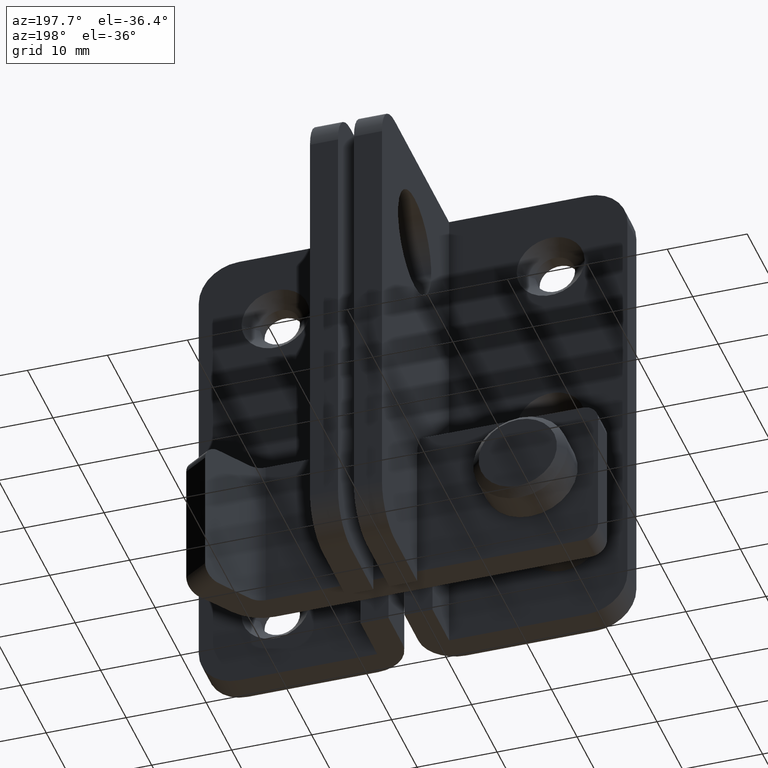
[diagram: clean part render]
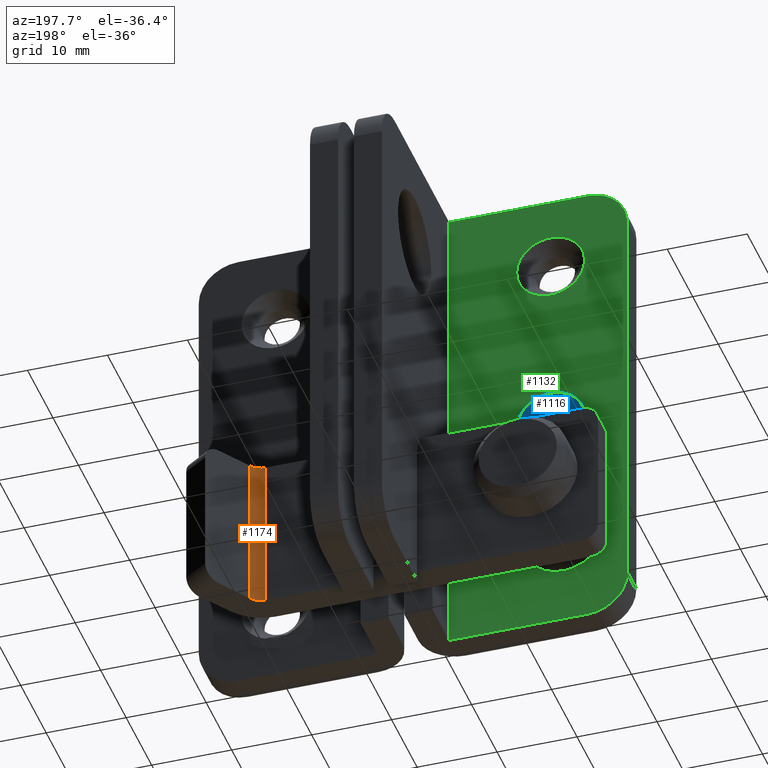
[diagram: same view with three faces highlighted in distinct colors, each labeled with its STEP entity id]
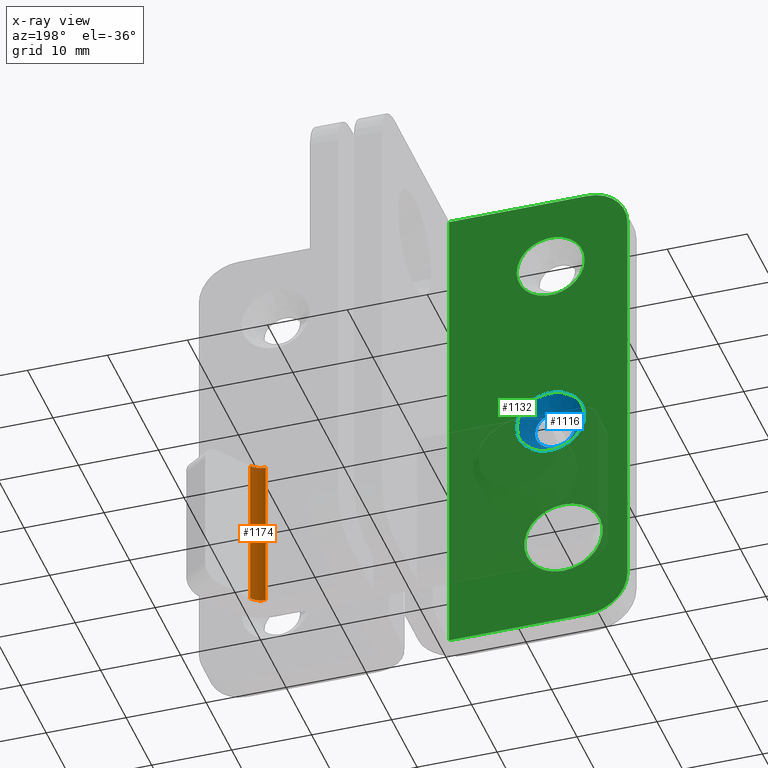
[diagram: x-ray of the same camera — body ghosted, the three highlighted faces saturated]
A machine part, auxiliary view with three faces highlighted in distinct colors.
The next image is the same camera in x-ray (body ghosted, the three faces saturated) — at least one of them is partly hidden behind the body in this view.
Their STEP definitions:

[orange] entity #1174 — the highlighted cylindrical surface (edge-blend (fillet) strip) has radius 2 mm, axis along (-0, 0, -1).
#175=FACE_OUTER_BOUND('',#274,.T.);
#274=EDGE_LOOP('',(#1063,#1064,#1065,#1066));
#360=LINE('',#1988,#450);
#365=LINE('',#2003,#455);
#450=VECTOR('',#1642,19.6);
#455=VECTOR('',#1659,19.6);
#509=CIRCLE('',#1296,2.);
#515=CIRCLE('',#1309,2.);
#615=VERTEX_POINT('',#1970);
#616=VERTEX_POINT('',#1972);
#621=VERTEX_POINT('',#1986);
#625=VERTEX_POINT('',#2002);
#759=EDGE_CURVE('',#615,#616,#509,.T.);
#767=EDGE_CURVE('',#621,#615,#360,.T.);
#774=EDGE_CURVE('',#625,#616,#365,.T.);
#776=EDGE_CURVE('',#625,#621,#515,.T.);
#1063=ORIENTED_EDGE('',*,*,#776,.F.);
#1064=ORIENTED_EDGE('',*,*,#774,.T.);
#1065=ORIENTED_EDGE('',*,*,#759,.F.);
#1066=ORIENTED_EDGE('',*,*,#767,.F.);
#1109=CYLINDRICAL_SURFACE('',#1308,2.);
#1174=ADVANCED_FACE('',(#175),#1109,.F.);
#1296=AXIS2_PLACEMENT_3D('',#1973,#1626,#1627);
#1308=AXIS2_PLACEMENT_3D('',#2005,#1661,#1662);
#1309=AXIS2_PLACEMENT_3D('',#2006,#1663,#1664);
#1626=DIRECTION('center_axis',(0.,0.,1.));
#1627=DIRECTION('ref_axis',(4.44089209850062E-15,1.,0.));
#1642=DIRECTION('',(0.,0.,-1.));
#1659=DIRECTION('',(0.,0.,-1.));
#1661=DIRECTION('center_axis',(0.,0.,-1.));
#1662=DIRECTION('ref_axis',(4.44089209850062E-15,1.,0.));
#1663=DIRECTION('center_axis',(0.,0.,-1.));
#1664=DIRECTION('ref_axis',(4.44089209850062E-15,1.,0.));
#1970=CARTESIAN_POINT('',(41.55,3.5,-19.6));
#1972=CARTESIAN_POINT('',(43.2256131233924,4.40806563351308,-19.6));
#1973=CARTESIAN_POINT('Origin',(41.55,5.50000000000001,-19.6));
#1986=CARTESIAN_POINT('',(41.55,3.5,0.));
#1988=CARTESIAN_POINT('',(41.55,3.5,0.));
#2002=CARTESIAN_POINT('',(43.2256131233924,4.40806563351308,0.));
#2003=CARTESIAN_POINT('',(43.2256131233924,4.40806563351308,0.));
#2005=CARTESIAN_POINT('Origin',(41.55,5.50000000000001,0.));
#2006=CARTESIAN_POINT('Origin',(41.55,5.50000000000001,0.));

[blue] entity #1116 — the highlighted conical surface has half-angle 45 deg.
#39=CONICAL_SURFACE('',#1193,3.375,45.);
#47=FACE_BOUND('',#187,.T.);
#117=FACE_OUTER_BOUND('',#186,.T.);
#186=EDGE_LOOP('',(#807));
#187=EDGE_LOOP('',(#808));
#464=CIRCLE('',#1194,4.25);
#465=CIRCLE('',#1195,2.5);
#533=VERTEX_POINT('',#1724);
#534=VERTEX_POINT('',#1726);
#647=EDGE_CURVE('',#533,#533,#464,.T.);
#648=EDGE_CURVE('',#534,#534,#465,.T.);
#807=ORIENTED_EDGE('',*,*,#647,.F.);
#808=ORIENTED_EDGE('',*,*,#648,.F.);
#1116=ADVANCED_FACE('',(#117,#47),#39,.F.);
#1193=AXIS2_PLACEMENT_3D('',#1723,#1357,#1358);
#1194=AXIS2_PLACEMENT_3D('',#1725,#1359,#1360);
#1195=AXIS2_PLACEMENT_3D('',#1727,#1361,#1362);
#1357=DIRECTION('center_axis',(-5.97429430291564E-16,1.,0.));
#1358=DIRECTION('ref_axis',(1.,5.97429430291564E-16,0.));
#1359=DIRECTION('center_axis',(5.97429430291564E-16,-1.,0.));
#1360=DIRECTION('ref_axis',(1.,5.97429430291564E-16,0.));
#1361=DIRECTION('center_axis',(-5.97429430291564E-16,1.,0.));
#1362=DIRECTION('ref_axis',(1.,5.97429430291564E-16,0.));
#1723=CARTESIAN_POINT('Origin',(9.6,2.625,-32.4));
#1724=CARTESIAN_POINT('',(13.85,3.5,-32.4));
#1725=CARTESIAN_POINT('Origin',(9.6,3.5,-32.4));
#1726=CARTESIAN_POINT('',(12.1,1.75,-32.4));
#1727=CARTESIAN_POINT('Origin',(9.6,1.74999999999999,-32.4));

[green] entity #1132 — the highlighted planar face has unit normal (-0, 1, 0).
#60=FACE_BOUND('',#216,.T.);
#61=FACE_BOUND('',#217,.T.);
#62=FACE_BOUND('',#218,.T.);
#87=PLANE('',#1228);
#133=FACE_OUTER_BOUND('',#215,.T.);
#215=EDGE_LOOP('',(#853,#854,#855,#856,#857,#858));
#216=EDGE_LOOP('',(#859));
#217=EDGE_LOOP('',(#860));
#218=EDGE_LOOP('',(#861));
#296=LINE('',#1775,#386);
#301=LINE('',#1791,#391);
#302=LINE('',#1795,#392);
#303=LINE('',#1796,#393);
#386=VECTOR('',#1420,17.3);
#391=VECTOR('',#1437,51.9);
#392=VECTOR('',#1440,17.3);
#393=VECTOR('',#1441,61.9);
#464=CIRCLE('',#1194,4.25);
#467=CIRCLE('',#1199,4.25);
#477=CIRCLE('',#1218,4.9);
#482=CIRCLE('',#1227,5.);
#483=CIRCLE('',#1229,5.);
#533=VERTEX_POINT('',#1724);
#536=VERTEX_POINT('',#1732);
#546=VERTEX_POINT('',#1761);
#550=VERTEX_POINT('',#1772);
#551=VERTEX_POINT('',#1774);
#555=VERTEX_POINT('',#1786);
#556=VERTEX_POINT('',#1790);
#557=VERTEX_POINT('',#1792);
#558=VERTEX_POINT('',#1794);
#647=EDGE_CURVE('',#533,#533,#464,.T.);
#650=EDGE_CURVE('',#536,#536,#467,.T.);
#660=EDGE_CURVE('',#546,#546,#477,.T.);
#666=EDGE_CURVE('',#550,#551,#296,.T.);
#672=EDGE_CURVE('',#555,#550,#482,.T.);
#674=EDGE_CURVE('',#556,#555,#301,.T.);
#675=EDGE_CURVE('',#557,#556,#483,.T.);
#676=EDGE_CURVE('',#558,#557,#302,.T.);
#677=EDGE_CURVE('',#558,#551,#303,.T.);
#853=ORIENTED_EDGE('',*,*,#672,.F.);
#854=ORIENTED_EDGE('',*,*,#674,.F.);
#855=ORIENTED_EDGE('',*,*,#675,.F.);
#856=ORIENTED_EDGE('',*,*,#676,.F.);
#857=ORIENTED_EDGE('',*,*,#677,.T.);
#858=ORIENTED_EDGE('',*,*,#666,.F.);
#859=ORIENTED_EDGE('',*,*,#647,.T.);
#860=ORIENTED_EDGE('',*,*,#650,.T.);
#861=ORIENTED_EDGE('',*,*,#660,.T.);
#1132=ADVANCED_FACE('',(#133,#60,#61,#62),#87,.T.);
#1194=AXIS2_PLACEMENT_3D('',#1725,#1359,#1360);
#1199=AXIS2_PLACEMENT_3D('',#1733,#1369,#1370);
#1218=AXIS2_PLACEMENT_3D('',#1762,#1407,#1408);
#1227=AXIS2_PLACEMENT_3D('',#1787,#1432,#1433);
#1228=AXIS2_PLACEMENT_3D('',#1789,#1435,#1436);
#1229=AXIS2_PLACEMENT_3D('',#1793,#1438,#1439);
#1359=DIRECTION('center_axis',(5.97429430291564E-16,-1.,0.));
#1360=DIRECTION('ref_axis',(1.,5.97429430291564E-16,0.));
#1369=DIRECTION('center_axis',(5.97429430291564E-16,-1.,0.));
#1370=DIRECTION('ref_axis',(1.,5.97429430291564E-16,0.));
#1407=DIRECTION('center_axis',(5.97429430291564E-16,-1.,0.));
#1408=DIRECTION('ref_axis',(0.,0.,1.));
#1420=DIRECTION('',(1.,5.97429430291564E-16,0.));
#1432=DIRECTION('center_axis',(5.97429430291564E-16,-1.,0.));
#1433=DIRECTION('ref_axis',(-0.707106781186547,-4.71027737605132E-16,-0.707106781186547));
#1435=DIRECTION('center_axis',(-5.97429430291564E-16,1.,0.));
#1436=DIRECTION('ref_axis',(1.,5.77315972805081E-16,0.));
#1437=DIRECTION('',(0.,0.,-1.));
#1438=DIRECTION('center_axis',(5.97429430291564E-16,-1.,0.));
#1439=DIRECTION('ref_axis',(-0.707106781186547,-4.71027737605132E-16,0.707106781186547));
#1440=DIRECTION('',(-1.,-5.97429430291564E-16,0.));
#1441=DIRECTION('',(0.,0.,-1.));
#1724=CARTESIAN_POINT('',(13.85,3.5,-32.4));
#1725=CARTESIAN_POINT('Origin',(9.6,3.5,-32.4));
#1732=CARTESIAN_POINT('',(13.85,3.5,-9.4));
#1733=CARTESIAN_POINT('Origin',(9.6,3.5,-9.4));
#1761=CARTESIAN_POINT('',(8.,3.5,-45.));
#1762=CARTESIAN_POINT('Origin',(8.,3.5,-49.9));
#1772=CARTESIAN_POINT('',(5.,3.5,-61.9));
#1774=CARTESIAN_POINT('',(22.3,3.50000000000001,-61.9));
#1775=CARTESIAN_POINT('',(22.3,3.50000000000001,-61.9));
#1786=CARTESIAN_POINT('',(-2.78607146806023E-15,3.5,-56.9));
#1787=CARTESIAN_POINT('Origin',(5.,3.5,-56.9));
#1789=CARTESIAN_POINT('Origin',(-4.44089209850063E-15,3.5,0.));
#1790=CARTESIAN_POINT('',(-2.78607146806023E-15,3.5,-5.));
#1791=CARTESIAN_POINT('',(-2.78607146806023E-15,3.5,0.));
#1792=CARTESIAN_POINT('',(5.,3.5,0.));
#1793=CARTESIAN_POINT('Origin',(5.,3.5,-5.));
#1794=CARTESIAN_POINT('',(22.3,3.50000000000001,0.));
#1795=CARTESIAN_POINT('',(22.3,3.50000000000001,0.));
#1796=CARTESIAN_POINT('',(22.3,3.50000000000001,0.));